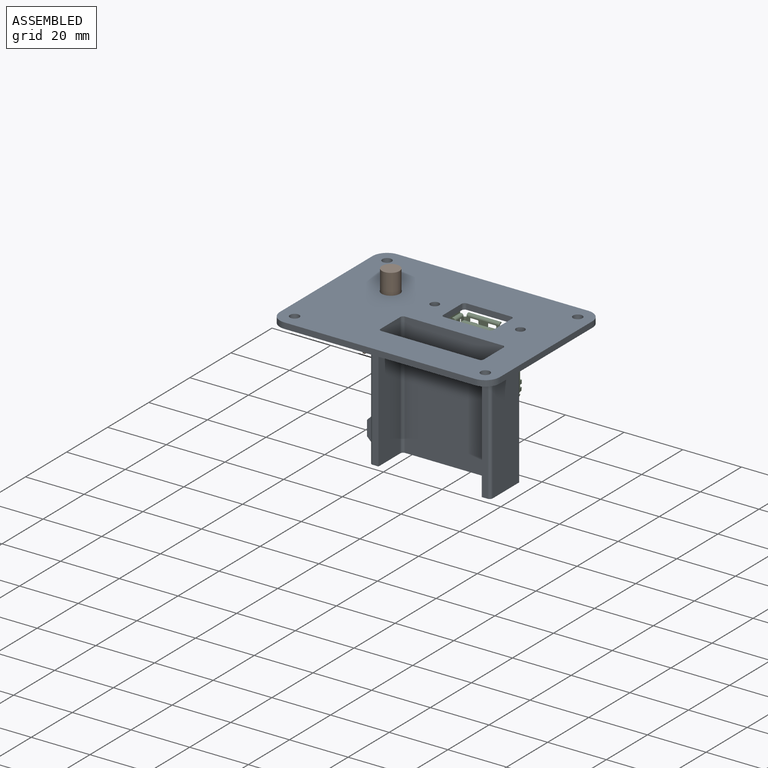
[diagram: assembled view]
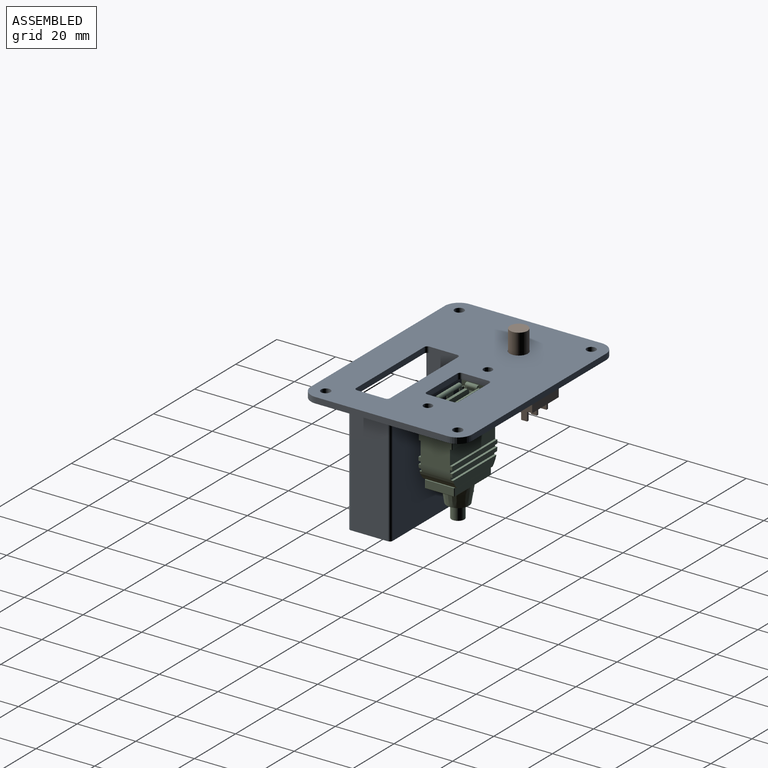
[diagram: assembled view, second angle]
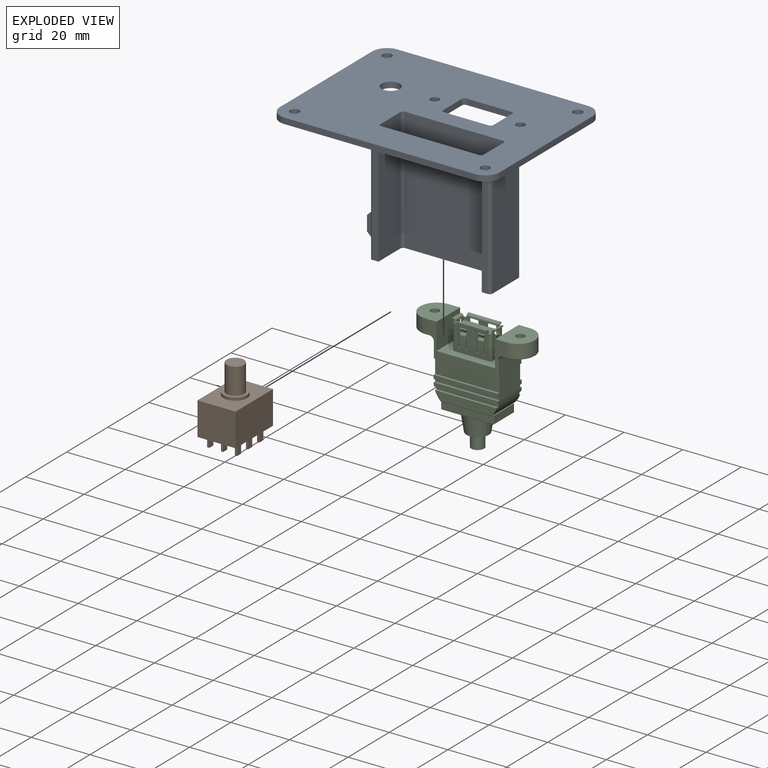
[diagram: exploded view]
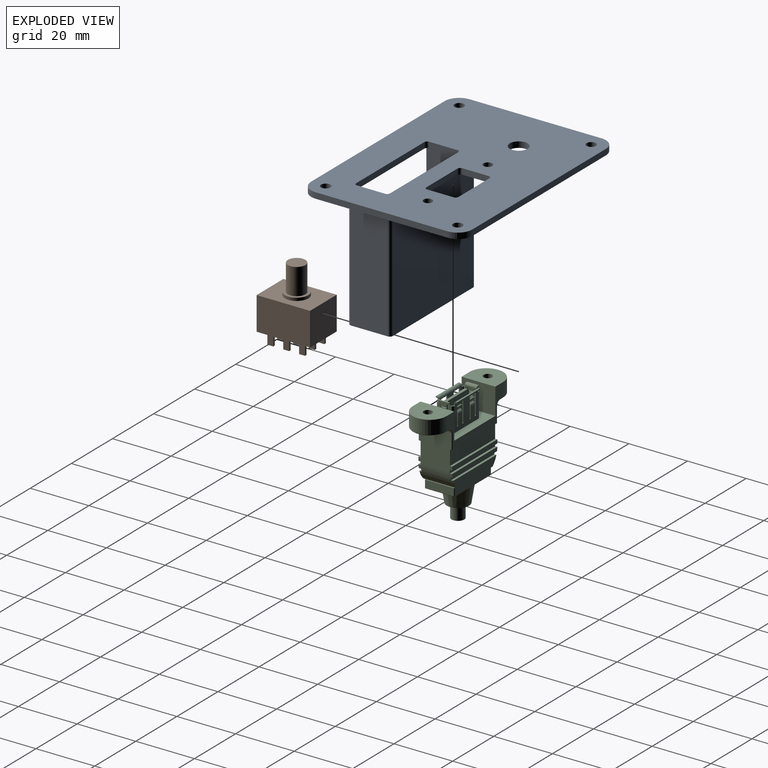
[diagram: exploded view, second angle]
ASSEMBLY  parts=3 mates=2
PART A: 51 faces, bbox 75x55x42 mm
  f0: plane 15x5mm, normal (0,1,0), area 42mm2, adj f25,f29,f30,f31,f32,f33,f34
  f1: plane 75x55mm, normal (0,0,-1), area 3239.2mm2, adj f2,f3,f4,f5,f6,f7,f9,f10
  f2: plane 65x2mm, normal (0,-1,0), area 130mm2, adj f1,f21,f35,f38
  f3: plane 45x2mm, normal (1,0,0), area 90mm2, adj f1,f21,f35,f36
  f4: plane 65x2mm, normal (0,1,0), area 130mm2, adj f1,f21,f36,f37
  f5: plane 9x2mm, normal (-1,0,0), area 18mm2, adj f1,f21,f47,f50
  f6: plane 15.13x2mm, normal (0,1,0), area 30.3mm2, adj f1,f21,f47,f48
  f7: plane 9x2mm, normal (1,0,0), area 18mm2, adj f1,f21,f48,f49
  f8: plane 42x33.2mm, normal (0,-1,0), area 1394.4mm2, adj f21,f27,f43,f46
  f9: plane 42x10.6mm, normal (-1,0,0), area 443.2mm2, adj f1,f21,f23,f27,f43,f44
  f10: plane 33.2x2mm, normal (0,1,0), area 66.4mm2, adj f1,f21,f44,f45
  f11: plane 15.13x2mm, normal (0,-1,0), area 30.3mm2, adj f1,f21,f49,f50
  f12: cylinder r=3.1mm len=6.2mm, axis (0,0,-1), area 39mm2, adj f1,f21
  f13: cylinder r=1.5mm len=3mm, axis (0,0,-1), area 18.8mm2, adj f1,f21
  f14: cylinder r=1.5mm len=3mm, axis (0,0,-1), area 18.8mm2, adj f1,f21
  f15: cylinder r=1.6mm len=3.2mm, axis (0,0,-1), area 20.1mm2, adj f1,f21
  f16: cylinder r=1.6mm len=3.2mm, axis (0,0,-1), area 20.1mm2, adj f1,f21
  f17: cylinder r=1.6mm len=3.2mm, axis (0,0,-1), area 20.1mm2, adj f1,f21
  f18: cylinder r=1.6mm len=3.2mm, axis (0,0,-1), area 20.1mm2, adj f1,f21
  f19: plane 42x10.6mm, normal (1,0,0), area 443.2mm2, adj f1,f21,f24,f27,f45,f46
  f20: plane 45x2mm, normal (-1,0,0), area 90mm2, adj f1,f21,f37,f38
  f21: plane 75x55mm, normal (0,0,1), area 3432mm2, adj f2,f3,f4,f5,f6,f7,f8,f9
  f22: plane 40x12.6mm, normal (1,0,0), area 504mm2, adj f1,f27,f39,f42
  f23: plane 40x2mm, normal (0,-1,0), area 80mm2, adj f1,f9,f27,f39
  f24: plane 40x2mm, normal (0,-1,0), area 80mm2, adj f1,f19,f27,f40
  f25: plane 40x12.6mm, normal (-1,0,0), area 471mm2, adj f0,f1,f27,f28,f30,f31,f34,f40
  f26: plane 40x39.2mm, normal (0,1,0), area 1568mm2, adj f1,f27,f41,f42
  f27: plane 41.2x14.6mm, normal (0,0,-1), area 192.8mm2, adj f8,f9,f19,f22,f23,f24,f25,f26
  f28: plane 15x5mm, normal (0,-1,0), area 42mm2, adj f25,f29,f30,f31,f32,f33,f34
  f29: plane 5x3mm, normal (-1,0,0), area 15mm2, adj f0,f28,f33,f34
  f30: plane 3x2mm, normal (0,0,1), area 6mm2, adj f0,f25,f28,f32
  f31: plane 3x2mm, normal (0,0,-1), area 6mm2, adj f0,f25,f28,f32
  f32: plane 4x3mm, normal (1,0,0), area 12mm2, adj f0,f28,f30,f31
  f33: plane 5x5mm, normal (-0.71,0,-0.71), area 21.2mm2, adj f0,f27,f28,f29
  f34: plane 5x5mm, normal (-0.71,0,0.71), area 21.2mm2, adj f0,f25,f28,f29
  f35: cylinder r=5mm len=5mm, axis (0,0,1), area 15.7mm2, adj f1,f2,f3,f21
  f36: cylinder r=5mm len=5mm, axis (0,0,-1), area 15.7mm2, adj f1,f3,f4,f21
  f37: cylinder r=5mm len=5mm, axis (0,0,1), area 15.7mm2, adj f1,f4,f20,f21
  f38: cylinder r=5mm len=5mm, axis (0,0,-1), area 15.7mm2, adj f1,f2,f20,f21
  f39: cylinder r=1mm len=40mm, axis (0,0,1), area 62.8mm2, adj f1,f22,f23,f27
  f40: cylinder r=1mm len=40mm, axis (0,0,1), area 62.8mm2, adj f1,f24,f25,f27
  f41: cylinder r=1mm len=40mm, axis (0,0,1), area 62.8mm2, adj f1,f25,f26,f27
  f42: cylinder r=1mm len=40mm, axis (0,0,1), area 62.8mm2, adj f1,f22,f26,f27
  f43: cylinder r=1mm len=42mm, axis (0,0,-1), area 66mm2, adj f8,f9,f21,f27
  f44: cylinder r=1mm len=2mm, axis (0,0,1), area 3.1mm2, adj f1,f9,f10,f21
  f45: cylinder r=1mm len=2mm, axis (0,0,-1), area 3.1mm2, adj f1,f10,f19,f21
  f46: cylinder r=1mm len=42mm, axis (0,0,1), area 66mm2, adj f8,f19,f21,f27
  f47: cylinder r=1mm len=2mm, axis (0,0,-1), area 3.1mm2, adj f1,f5,f6,f21
  f48: cylinder r=1mm len=2mm, axis (0,0,1), area 3.1mm2, adj f1,f6,f7,f21
  f49: cylinder r=1mm len=2mm, axis (0,0,-1), area 3.1mm2, adj f1,f7,f11,f21
  f50: cylinder r=1mm len=2mm, axis (0,0,1), area 3.1mm2, adj f1,f5,f11,f21
PART B: 55 faces, bbox 18.2x13x25.1 mm
  f0: plane 18.2x13mm, normal (0,0,-1), area 223.1mm2, adj f1,f2,f3,f4,f10,f11,f12,f13
  f1: plane 18.2x11.3mm, normal (0,-1,0), area 205.7mm2, adj f0,f2,f4,f5
  f2: plane 13x11.3mm, normal (1,0,0), area 146.9mm2, adj f0,f1,f3,f5
  f3: plane 18.2x11.3mm, normal (0,1,0), area 205.7mm2, adj f0,f2,f4,f5
  f4: plane 13x11.3mm, normal (-1,0,0), area 146.9mm2, adj f0,f1,f3,f5
  f5: plane 18.2x13mm, normal (0,0,1), area 186.3mm2, adj f1,f2,f3,f4,f6
  f6: cylinder r=4mm len=8mm, axis (0,0,-1), area 25.1mm2, adj f5,f7
  f7: plane 8x8mm, normal (0,0,1), area 22mm2, adj f6,f8
  f8: cylinder r=3mm len=9mm, axis (0,0,-1), area 169.6mm2, adj f7,f9
  f9: plane 6x6mm, normal (0,0,1), area 28.3mm2, adj f8
  f10: plane 3.8x0.75mm, normal (-1,0,0), area 2.9mm2, adj f0,f11,f13,f14
  f11: plane 3.8x2mm, normal (0,1,0), area 7.6mm2, adj f0,f10,f12,f14
  f12: plane 3.8x0.75mm, normal (1,0,0), area 2.9mm2, adj f0,f11,f13,f14
  f13: plane 3.8x2mm, normal (0,-1,0), area 7.6mm2, adj f0,f10,f12,f14
  f14: plane 2x0.75mm, normal (0,0,-1), area 1.5mm2, adj f10,f11,f12,f13
  f15: plane 3.8x2mm, normal (0,-1,0), area 7.6mm2, adj f0,f16,f18,f19
  f16: plane 3.8x0.75mm, normal (-1,0,0), area 2.9mm2, adj f0,f15,f17,f19
  f17: plane 3.8x2mm, normal (0,1,0), area 7.6mm2, adj f0,f16,f18,f19
  f18: plane 3.8x0.75mm, normal (1,0,0), area 2.9mm2, adj f0,f15,f17,f19
  f19: plane 2x0.75mm, normal (0,0,-1), area 1.5mm2, adj f15,f16,f17,f18
  f20: plane 3.8x2mm, normal (0,-1,0), area 7.6mm2, adj f0,f21,f23,f24
  f21: plane 3.8x0.75mm, normal (-1,0,0), area 2.9mm2, adj f0,f20,f22,f24
  f22: plane 3.8x2mm, normal (0,1,0), area 7.6mm2, adj f0,f21,f23,f24
  f23: plane 3.8x0.75mm, normal (1,0,0), area 2.9mm2, adj f0,f20,f22,f24
  f24: plane 2x0.75mm, normal (0,0,-1), area 1.5mm2, adj f20,f21,f22,f23
  f25: plane 3.8x0.75mm, normal (-1,0,0), area 2.9mm2, adj f0,f26,f28,f29
  f26: plane 3.8x2mm, normal (0,1,0), area 7.6mm2, adj f0,f25,f27,f29
  f27: plane 3.8x0.75mm, normal (1,0,0), area 2.9mm2, adj f0,f26,f28,f29
  f28: plane 3.8x2mm, normal (0,-1,0), area 7.6mm2, adj f0,f25,f27,f29
  f29: plane 2x0.75mm, normal (0,0,-1), area 1.5mm2, adj f25,f26,f27,f28
  f30: plane 3.8x2mm, normal (0,-1,0), area 7.6mm2, adj f0,f31,f33,f34
  f31: plane 3.8x0.75mm, normal (-1,0,0), area 2.9mm2, adj f0,f30,f32,f34
  f32: plane 3.8x2mm, normal (0,1,0), area 7.6mm2, adj f0,f31,f33,f34
  f33: plane 3.8x0.75mm, normal (1,0,0), area 2.9mm2, adj f0,f30,f32,f34
  f34: plane 2x0.75mm, normal (0,0,-1), area 1.5mm2, adj f30,f31,f32,f33
  f35: plane 3.8x0.75mm, normal (-1,0,0), area 2.9mm2, adj f0,f36,f38,f39
  f36: plane 3.8x2mm, normal (0,1,0), area 7.6mm2, adj f0,f35,f37,f39
  f37: plane 3.8x0.75mm, normal (1,0,0), area 2.9mm2, adj f0,f36,f38,f39
  f38: plane 3.8x2mm, normal (0,-1,0), area 7.6mm2, adj f0,f35,f37,f39
  f39: plane 2x0.75mm, normal (0,0,-1), area 1.5mm2, adj f35,f36,f37,f38
  f40: plane 3.8x0.75mm, normal (-1,0,0), area 2.9mm2, adj f0,f41,f43,f44
  f41: plane 3.8x2mm, normal (0,1,0), area 7.6mm2, adj f0,f40,f42,f44
  f42: plane 3.8x0.75mm, normal (1,0,0), area 2.9mm2, adj f0,f41,f43,f44
  f43: plane 3.8x2mm, normal (0,-1,0), area 7.6mm2, adj f0,f40,f42,f44
  f44: plane 2x0.75mm, normal (0,0,-1), area 1.5mm2, adj f40,f41,f42,f43
  f45: plane 3.8x2mm, normal (0,-1,0), area 7.6mm2, adj f0,f46,f48,f49
  f46: plane 3.8x0.75mm, normal (-1,0,0), area 2.9mm2, adj f0,f45,f47,f49
  f47: plane 3.8x2mm, normal (0,1,0), area 7.6mm2, adj f0,f46,f48,f49
  f48: plane 3.8x0.75mm, normal (1,0,0), area 2.9mm2, adj f0,f45,f47,f49
  f49: plane 2x0.75mm, normal (0,0,-1), area 1.5mm2, adj f45,f46,f47,f48
  f50: plane 3.8x0.75mm, normal (-1,0,0), area 2.9mm2, adj f0,f51,f53,f54
  f51: plane 3.8x2mm, normal (0,1,0), area 7.6mm2, adj f0,f50,f52,f54
  f52: plane 3.8x0.75mm, normal (1,0,0), area 2.9mm2, adj f0,f51,f53,f54
  f53: plane 3.8x2mm, normal (0,-1,0), area 7.6mm2, adj f0,f50,f52,f54
  f54: plane 2x0.75mm, normal (0,0,-1), area 1.5mm2, adj f50,f51,f52,f53
PART C: 258 faces, bbox 40.1x38.6x12.5 mm
  f0: cylinder r=2.16mm len=4.7mm, axis (0,-1,0), area 63.8mm2, adj f14,f257
  f1: plane 12.45x5.08mm, normal (0,-1,0), area 43.7mm2, adj f107,f108,f109,f110,f111,f112,f113,f114
  f2: plane 1.02x0.89mm, normal (0,-1,0), area 0.5mm2, adj f102,f103,f104,f110,f111,f112,f118,f121
  f3: plane 1.02x0.89mm, normal (0,-1,0), area 0.5mm2, adj f104,f105,f106,f112,f113,f114,f120,f122
  f4: plane 1.02x0.89mm, normal (0,-1,0), area 0.5mm2, adj f99,f100,f106,f107,f108,f114,f116,f119
  f5: plane 1.02x0.89mm, normal (0,-1,0), area 0.5mm2, adj f100,f101,f102,f108,f109,f110,f115,f117
  f6: plane 20x11.51mm, normal (0,-1,0), area 153.5mm2, adj f8,f24,f25,f28,f99,f100,f101,f102
  f7: plane 9.65x8.7mm, normal (0,1,0), area 47.4mm2, adj f46,f87,f91,f92
  f8: plane 27.62x11.53mm, normal (0,0,1), area 97.8mm2, adj f6,f23,f24,f25,f26,f35,f37,f62
  f9: plane 22x1.27mm, normal (0,0,1), area 27.9mm2, adj f16,f18,f59,f63
  f10: plane 21.98x1.27mm, normal (0,0,1), area 27.7mm2, adj f21,f22,f57,f60
  f11: plane 22x1.27mm, normal (0,0,-1), area 27.9mm2, adj f16,f18,f49,f54
  f12: plane 21.07x2.79mm, normal (0,0,-1), area 54.8mm2, adj f21,f22,f50,f98
  f13: plane 21.98x1.27mm, normal (0,0,-1), area 27.7mm2, adj f21,f22,f48,f51
  f14: plane 7.62x7.62mm, normal (0,1,0), area 31mm2, adj f0,f46
  f15: plane 9.65x8.7mm, normal (0,1,0), area 47.4mm2, adj f46,f86,f87,f91
  f16: plane 12.09x11.51mm, normal (1,0,0), area 125.3mm2, adj f9,f11,f21,f41,f42,f43,f47,f49
  f17: plane 11x6.72mm, normal (0,1,0), area 53.7mm2, adj f41,f42,f43,f45,f67,f68,f78,f79
  f18: plane 12.09x11.51mm, normal (-1,0,0), area 125.3mm2, adj f9,f11,f22,f38,f39,f40,f47,f49
  f19: plane 16.93x0.42mm, normal (0,1,0), area 7.1mm2, adj f33,f95,f96,f97
  f20: plane 17.14x0.42mm, normal (0,1,0), area 7.2mm2, adj f21,f22,f31,f98
  f21: cylinder r=7.94mm len=11.51mm, axis (0,0,-1), area 71.1mm2, adj f10,f12,f13,f16,f20,f27,f29,f33
  f22: cylinder r=7.94mm len=11.51mm, axis (0,0,-1), area 71.1mm2, adj f10,f12,f13,f18,f20,f27,f33,f34
  f23: plane 11.51x9.63mm, normal (0,-1,0), area 90mm2, adj f8,f24,f28,f37,f44
  f24: plane 11.51x8.99mm, normal (1,0,0), area 103.5mm2, adj f6,f8,f23,f28
  f25: plane 11.51x8.99mm, normal (-1,0,0), area 103.5mm2, adj f6,f8,f26,f28
  f26: plane 11.51x9.5mm, normal (0,-1,0), area 88.5mm2, adj f8,f25,f28,f35,f45
  f27: plane 21.07x2.79mm, normal (0,0,1), area 54.8mm2, adj f21,f22,f58,f96
  f28: plane 27.62x11.53mm, normal (0,0,-1), area 97.8mm2, adj f6,f23,f24,f25,f26,f35,f37,f55
  f29: plane 10.16x0.38mm, normal (0,-1,0), area 3.9mm2, adj f21,f30,f31,f33,f88,f94
  f30: plane 9.65x2.51mm, normal (1,0,0), area 24.3mm2, adj f29,f88,f92,f94
  f31: plane 17.4x2.51mm, normal (0,0,-1), area 43.8mm2, adj f20,f29,f34,f83,f87,f88
  f32: plane 9.65x2.51mm, normal (-1,0,0), area 24.3mm2, adj f34,f83,f85,f86
  f33: plane 17.4x2.59mm, normal (0,0,1), area 43.8mm2, adj f19,f21,f22,f29,f34,f85,f91,f94
  f34: plane 10.16x0.38mm, normal (0,-1,0), area 3.9mm2, adj f22,f31,f32,f33,f83,f85
  f35: cylinder r=5.75mm len=11.51mm, axis (0,-1,0), area 84mm2, adj f8,f26,f28,f79
  f36: plane 11x6.85mm, normal (0,1,0), area 55.2mm2, adj f38,f39,f40,f44,f65,f66,f71,f72
  f37: cylinder r=5.75mm len=11.51mm, axis (0,-1,0), area 84mm2, adj f8,f23,f28,f72
  f38: plane 2.54x2.54mm, normal (-0.82,0.57,0), area 7.9mm2, adj f18,f36,f39,f40
  f39: plane 2.54x1.78mm, normal (0,0,1), area 1.8mm2, adj f18,f36,f38,f66
  f40: plane 2.54x1.78mm, normal (0,0,-1), area 1.8mm2, adj f18,f36,f38,f65
  f41: plane 2.54x2.54mm, normal (0.82,0.57,0), area 7.9mm2, adj f16,f17,f42,f43
  f42: plane 2.54x1.78mm, normal (0,0,1), area 1.8mm2, adj f16,f17,f41,f68
  f43: plane 2.54x1.78mm, normal (0,0,-1), area 1.8mm2, adj f16,f17,f41,f67
  f44: cylinder r=1.45mm len=4.9mm, axis (0,-1,0), area 44.6mm2, adj f23,f36
  f45: cylinder r=1.45mm len=4.9mm, axis (0,-1,0), area 44.6mm2, adj f17,f26
  f46: cone r=4.83mm half-angle=9.1deg, axis (0,-1,0), area 174.5mm2, adj f7,f14,f15
  f47: plane 22x1.02mm, normal (0,0,-1), area 22.3mm2, adj f16,f18,f21,f22,f48,f49
  f48: plane 21.98x0.76mm, normal (0,-1,0), area 16.7mm2, adj f13,f21,f22,f47
  f49: plane 22x0.76mm, normal (0,1,0), area 16.8mm2, adj f11,f16,f18,f47
  f50: plane 21.07x0.76mm, normal (0,-1,0), area 16.1mm2, adj f12,f21,f22,f52
  f51: plane 21.65x0.76mm, normal (0,1,0), area 16.5mm2, adj f13,f21,f22,f52
  f52: plane 21.65x1.02mm, normal (0,0,-1), area 21.7mm2, adj f21,f22,f50,f51
  f53: plane 22x5.08mm, normal (0,0,-1), area 111.7mm2, adj f16,f18,f54,f55
  f54: plane 22x0.76mm, normal (0,-1,0), area 16.8mm2, adj f11,f16,f18,f53
  f55: plane 22x0.76mm, normal (0,1,0), area 16.7mm2, adj f16,f18,f28,f53,f69,f82
  f56: plane 21.65x1.02mm, normal (0,0,1), area 21.7mm2, adj f21,f22,f57,f58
  f57: plane 21.65x0.76mm, normal (0,1,0), area 16.5mm2, adj f10,f21,f22,f56
  f58: plane 21.07x0.76mm, normal (0,-1,0), area 16.1mm2, adj f21,f22,f27,f56
  f59: plane 22x0.76mm, normal (0,1,0), area 16.8mm2, adj f9,f16,f18,f61
  f60: plane 21.98x0.76mm, normal (0,-1,0), area 16.7mm2, adj f10,f21,f22,f61
  f61: plane 22x1.02mm, normal (0,0,1), area 22.3mm2, adj f16,f18,f21,f22,f59,f60
  f62: plane 22x0.76mm, normal (0,1,0), area 16.7mm2, adj f8,f16,f18,f64,f75,f76
  f63: plane 22x0.76mm, normal (0,-1,0), area 16.8mm2, adj f9,f16,f18,f64
  f64: plane 22x5.08mm, normal (0,0,1), area 111.7mm2, adj f16,f18,f62,f63
  f65: cylinder r=1.52mm len=4.23mm, axis (0,0,1), area 10.1mm2, adj f18,f36,f40,f70
  f66: cylinder r=1.52mm len=4.23mm, axis (0,0,1), area 10.1mm2, adj f18,f36,f39,f74
  f67: cylinder r=1.52mm len=4.23mm, axis (0,0,-1), area 10.1mm2, adj f16,f17,f43,f81
  f68: cylinder r=1.52mm len=4.23mm, axis (0,0,-1), area 10.1mm2, adj f16,f17,f42,f77
  f69: cylinder r=0.25mm len=5.11mm, axis (0,-1,0), area 2mm2, adj f18,f28,f55,f70
  f70: torus R=1.78mm, axis (0,0,1), area 1mm2, adj f28,f65,f69,f71
  f71: cylinder r=0.25mm len=1.35mm, axis (1,0,0), area 0.5mm2, adj f28,f36,f70,f72
  f72: torus R=5.5mm, axis (0,-1,0), area 7.1mm2, adj f36,f37,f71,f73
  f73: cylinder r=0.25mm len=1.35mm, axis (1,0,0), area 0.5mm2, adj f8,f36,f72,f74
  f74: torus R=1.78mm, axis (0,0,1), area 1mm2, adj f8,f66,f73,f75
  f75: cylinder r=0.25mm len=5.11mm, axis (0,1,0), area 2mm2, adj f8,f18,f62,f74
  f76: cylinder r=0.25mm len=5.11mm, axis (0,-1,0), area 2mm2, adj f8,f16,f62,f77
  f77: torus R=1.78mm, axis (0,0,1), area 1mm2, adj f8,f68,f76,f78
  f78: cylinder r=0.25mm len=1.22mm, axis (-1,0,0), area 0.5mm2, adj f8,f17,f77,f79
  f79: torus R=5.5mm, axis (0,1,0), area 7.1mm2, adj f17,f35,f78,f80
  f80: cylinder r=0.25mm len=1.22mm, axis (-1,0,0), area 0.5mm2, adj f17,f28,f79,f81
  f81: torus R=1.78mm, axis (0,0,1), area 1mm2, adj f28,f67,f80,f82
  f82: cylinder r=0.25mm len=5.11mm, axis (0,1,0), area 2mm2, adj f16,f28,f55,f81
  f83: cylinder r=0.25mm len=2.51mm, axis (0,-1,0), area 1mm2, adj f31,f32,f34,f84
  f84: sphere r=0.25mm, area 0.1mm2, adj f83,f86,f87
  f85: cylinder r=0.25mm len=2.51mm, axis (0,-1,0), area 1mm2, adj f32,f33,f34,f89
  f86: cylinder r=0.25mm len=9.65mm, axis (0,0,-1), area 3.9mm2, adj f15,f32,f84,f89
  f87: cylinder r=0.25mm len=17.4mm, axis (1,0,0), area 6.9mm2, adj f7,f15,f31,f84,f90
  f88: cylinder r=0.25mm len=2.51mm, axis (0,-1,0), area 1mm2, adj f29,f30,f31,f90
  f89: sphere r=0.25mm, area 0.1mm2, adj f85,f86,f91
  f90: sphere r=0.25mm, area 0.1mm2, adj f87,f88,f92
  f91: cylinder r=0.25mm len=17.4mm, axis (-1,0,0), area 6.9mm2, adj f7,f15,f33,f89,f93
  f92: cylinder r=0.25mm len=9.65mm, axis (0,0,1), area 3.9mm2, adj f7,f30,f90,f93
  f93: sphere r=0.25mm, area 0.1mm2, adj f91,f92,f94
  f94: cylinder r=0.25mm len=2.51mm, axis (0,-1,0), area 1mm2, adj f29,f30,f33,f93
  f95: cylinder r=0.25mm len=0.6mm, axis (0,0,-1), area 0.1mm2, adj f19,f21,f33,f96
  f96: cylinder r=0.25mm len=17.64mm, axis (1,0,0), area 6.9mm2, adj f19,f21,f22,f27,f95,f97
  f97: cylinder r=0.25mm len=0.6mm, axis (0,0,-1), area 0.1mm2, adj f19,f22,f33,f96
  f98: cylinder r=0.25mm len=17.64mm, axis (-1,0,0), area 6.9mm2, adj f12,f20,f21,f22
  f99: cylinder r=0.76mm len=8.38mm, axis (0,1,0), area 10mm2, adj f4,f6,f100,f106
  f100: plane 8.76x4.32mm, normal (-1,0,0), area 21.3mm2, adj f4,f5,f6,f99,f101,f115,f116,f137
  f101: cylinder r=0.76mm len=8.38mm, axis (0,1,0), area 10mm2, adj f5,f6,f100,f102
  f102: plane 11.68x8.76mm, normal (0,0,-1), area 74.8mm2, adj f2,f5,f6,f101,f103,f117,f118,f128
  f103: cylinder r=0.76mm len=8.38mm, axis (0,1,0), area 10mm2, adj f2,f6,f102,f104
  f104: plane 8.76x4.32mm, normal (1,0,0), area 21.3mm2, adj f2,f3,f6,f103,f105,f121,f122,f138
  f105: cylinder r=0.76mm len=8.38mm, axis (0,1,0), area 10mm2, adj f3,f6,f104,f106
  f106: plane 11.68x8.76mm, normal (0,0,1), area 74.8mm2, adj f3,f4,f6,f99,f105,f119,f120,f127
  f107: cylinder r=0.38mm len=8.38mm, axis (0,1,0), area 5mm2, adj f1,f4,f108,f114
  f108: plane 8.76x4.32mm, normal (1,0,0), area 21.3mm2, adj f1,f4,f5,f107,f109,f115,f116,f133
  f109: cylinder r=0.38mm len=8.38mm, axis (0,1,0), area 5mm2, adj f1,f5,f108,f110
  f110: plane 11.68x8.76mm, normal (0,0,1), area 74.8mm2, adj f1,f2,f5,f109,f111,f117,f118,f132
  f111: cylinder r=0.38mm len=8.38mm, axis (0,1,0), area 5mm2, adj f1,f2,f110,f112
  f112: plane 8.76x4.32mm, normal (-1,0,0), area 21.3mm2, adj f1,f2,f3,f111,f113,f121,f122,f142
  f113: cylinder r=0.38mm len=8.38mm, axis (0,1,0), area 5mm2, adj f1,f3,f112,f114
  f114: plane 11.68x8.76mm, normal (0,0,-1), area 74.8mm2, adj f1,f3,f4,f107,f113,f119,f120,f123
  f115: plane 1.14x1.08mm, normal (0,0,-1), area 0.6mm2, adj f5,f100,f108,f133,f134,f135,f136,f137
  f116: plane 1.14x1.08mm, normal (0,0,1), area 0.6mm2, adj f4,f100,f108,f133,f134,f135,f136,f137
  f117: plane 1.14x1.08mm, normal (-1,0,0), area 0.6mm2, adj f5,f102,f110,f128,f129,f130,f131,f132
  f118: plane 1.14x1.08mm, normal (1,0,0), area 0.6mm2, adj f2,f102,f110,f128,f129,f130,f131,f132
  f119: plane 1.14x1.08mm, normal (-1,0,0), area 0.6mm2, adj f4,f106,f114,f123,f124,f125,f126,f127
  f120: plane 1.14x1.08mm, normal (1,0,0), area 0.6mm2, adj f3,f106,f114,f123,f124,f125,f126,f127
  f121: plane 1.14x1.08mm, normal (0,0,-1), area 0.6mm2, adj f2,f104,f112,f138,f139,f140,f141,f142
  f122: plane 1.14x1.08mm, normal (0,0,1), area 0.6mm2, adj f3,f104,f112,f138,f139,f140,f141,f142
  f123: cylinder r=0.76mm len=11.18mm, axis (1,0,0), area 13.4mm2, adj f114,f119,f120,f124
  f124: plane 11.18x0.32mm, normal (0,-1,0), area 3.5mm2, adj f119,f120,f123,f125
  f125: plane 11.18x0.38mm, normal (0,0,1), area 4.3mm2, adj f119,f120,f124,f126
  f126: plane 11.18x0.32mm, normal (0,1,0), area 3.5mm2, adj f119,f120,f125,f127
  f127: cylinder r=0.38mm len=11.18mm, axis (1,0,0), area 6.7mm2, adj f106,f119,f120,f126
  f128: cylinder r=0.38mm len=11.18mm, axis (1,0,0), area 6.7mm2, adj f102,f117,f118,f129
  f129: plane 11.18x0.32mm, normal (0,1,0), area 3.5mm2, adj f117,f118,f128,f130
  f130: plane 11.18x0.38mm, normal (0,0,-1), area 4.3mm2, adj f117,f118,f129,f131
  f131: plane 11.18x0.32mm, normal (0,-1,0), area 3.5mm2, adj f117,f118,f130,f132
  f132: cylinder r=0.76mm len=11.18mm, axis (1,0,0), area 13.4mm2, adj f110,f117,f118,f131
  f133: cylinder r=0.76mm len=4.06mm, axis (0,0,1), area 4.9mm2, adj f108,f115,f116,f134
  f134: plane 4.06x0.32mm, normal (0,-1,0), area 1.3mm2, adj f115,f116,f133,f135
  f135: plane 4.06x0.38mm, normal (-1,0,0), area 1.5mm2, adj f115,f116,f134,f136
  f136: plane 4.06x0.32mm, normal (0,1,0), area 1.3mm2, adj f115,f116,f135,f137
  f137: cylinder r=0.38mm len=4.06mm, axis (0,0,1), area 2.4mm2, adj f100,f115,f116,f136
  f138: cylinder r=0.38mm len=4.06mm, axis (0,0,1), area 2.4mm2, adj f104,f121,f122,f139
  f139: plane 4.06x0.32mm, normal (0,1,0), area 1.3mm2, adj f121,f122,f138,f140
  f140: plane 4.06x0.38mm, normal (1,0,0), area 1.5mm2, adj f121,f122,f139,f141
  f141: plane 4.06x0.32mm, normal (0,-1,0), area 1.3mm2, adj f121,f122,f140,f142
  f142: cylinder r=0.76mm len=4.06mm, axis (0,0,1), area 4.9mm2, adj f112,f121,f122,f141
  f143: plane 6.6x0.38mm, normal (-1,0,0), area 2.5mm2, adj f106,f114,f144,f151
  f144: cylinder r=0.25mm len=0.51mm, axis (0,0,1), area 0.3mm2, adj f106,f114,f143,f145
  f145: plane 5.84x1.02mm, normal (1,0,0), area 2.3mm2, adj f106,f114,f144,f197,f198,f199,f200,f201
  f146: plane 5.84x1.02mm, normal (-1,0,0), area 2.3mm2, adj f106,f114,f147,f197,f198,f199,f200,f201
  f147: cylinder r=0.25mm len=0.51mm, axis (0,0,1), area 0.3mm2, adj f106,f114,f146,f148
  f148: plane 6.6x0.38mm, normal (1,0,0), area 2.5mm2, adj f106,f114,f147,f149
  f149: cylinder r=0.25mm len=0.38mm, axis (0,0,1), area 0.2mm2, adj f106,f114,f148,f150
  f150: plane 2.54x0.38mm, normal (0,1,0), area 1mm2, adj f106,f114,f149,f151
  f151: cylinder r=0.25mm len=0.38mm, axis (0,0,1), area 0.2mm2, adj f106,f114,f143,f150
  f152: cylinder r=0.25mm len=0.38mm, axis (0,0,1), area 0.2mm2, adj f102,f110,f153,f160
  f153: plane 2.54x0.38mm, normal (0,1,0), area 1mm2, adj f102,f110,f152,f154
  f154: cylinder r=0.25mm len=0.38mm, axis (0,0,1), area 0.2mm2, adj f102,f110,f153,f155
  f155: plane 6.6x0.38mm, normal (1,0,0), area 2.5mm2, adj f102,f110,f154,f156
  f156: cylinder r=0.25mm len=0.51mm, axis (0,0,1), area 0.3mm2, adj f102,f110,f155,f157
  f157: plane 5.84x1.02mm, normal (-1,0,0), area 2.3mm2, adj f102,f110,f156,f206,f207,f208,f209,f210
  f158: plane 5.84x1.02mm, normal (1,0,0), area 2.3mm2, adj f102,f110,f159,f206,f207,f208,f209,f210
  f159: cylinder r=0.25mm len=0.51mm, axis (0,0,1), area 0.3mm2, adj f102,f110,f158,f160
  f160: plane 6.6x0.38mm, normal (-1,0,0), area 2.5mm2, adj f102,f110,f152,f159
  f161: plane 5.84x1.02mm, normal (1,0,0), area 2.3mm2, adj f106,f114,f169,f215,f216,f217,f218,f219
  f162: plane 5.84x1.02mm, normal (-1,0,0), area 2.3mm2, adj f106,f114,f163,f215,f216,f217,f218,f219
  f163: cylinder r=0.25mm len=0.51mm, axis (0,0,1), area 0.3mm2, adj f106,f114,f162,f164
  f164: plane 6.6x0.38mm, normal (1,0,0), area 2.5mm2, adj f106,f114,f163,f165
  f165: cylinder r=0.25mm len=0.38mm, axis (0,0,1), area 0.2mm2, adj f106,f114,f164,f166
  f166: plane 2.54x0.38mm, normal (0,1,0), area 1mm2, adj f106,f114,f165,f167
  f167: cylinder r=0.25mm len=0.38mm, axis (0,0,1), area 0.2mm2, adj f106,f114,f166,f168
  f168: plane 6.6x0.38mm, normal (-1,0,0), area 2.5mm2, adj f106,f114,f167,f169
  f169: cylinder r=0.25mm len=0.51mm, axis (0,0,1), area 0.3mm2, adj f106,f114,f161,f168
  f170: cylinder r=0.25mm len=0.51mm, axis (0,0,1), area 0.3mm2, adj f102,f110,f171,f178
  f171: plane 6.6x0.38mm, normal (-1,0,0), area 2.5mm2, adj f102,f110,f170,f172
  f172: cylinder r=0.25mm len=0.38mm, axis (0,0,1), area 0.2mm2, adj f102,f110,f171,f173
  f173: plane 2.54x0.38mm, normal (0,1,0), area 1mm2, adj f102,f110,f172,f174
  f174: cylinder r=0.25mm len=0.38mm, axis (0,0,1), area 0.2mm2, adj f102,f110,f173,f175
  f175: plane 6.6x0.38mm, normal (1,0,0), area 2.5mm2, adj f102,f110,f174,f176
  f176: cylinder r=0.25mm len=0.51mm, axis (0,0,1), area 0.3mm2, adj f102,f110,f175,f177
  f177: plane 5.84x1.02mm, normal (-1,0,0), area 2.3mm2, adj f102,f110,f176,f224,f225,f226,f227,f228
  f178: plane 5.84x1.02mm, normal (1,0,0), area 2.3mm2, adj f102,f110,f170,f224,f225,f226,f227,f228
  f179: plane 2.03x0.38mm, normal (0,1,0), area 0.8mm2, adj f104,f112,f180,f187
  f180: cylinder r=0.25mm len=0.38mm, axis (1,0,0), area 0.2mm2, adj f104,f112,f179,f181
  f181: plane 6.6x0.38mm, normal (0,0,1), area 2.5mm2, adj f104,f112,f180,f182
  f182: cylinder r=0.25mm len=0.51mm, axis (1,0,0), area 0.3mm2, adj f104,f112,f181,f183
  f183: plane 5.84x0.96mm, normal (0,0,-1), area 2.2mm2, adj f104,f112,f182,f233,f234,f235,f236,f237
  f184: plane 5.84x0.96mm, normal (0,0,1), area 2.2mm2, adj f104,f112,f185,f233,f234,f235,f236,f237
  f185: cylinder r=0.25mm len=0.51mm, axis (1,0,0), area 0.3mm2, adj f104,f112,f184,f186
  f186: plane 6.6x0.38mm, normal (0,0,-1), area 2.5mm2, adj f104,f112,f185,f187
  f187: cylinder r=0.25mm len=0.38mm, axis (1,0,0), area 0.2mm2, adj f104,f112,f179,f186
  f188: cylinder r=0.25mm len=0.38mm, axis (1,0,0), area 0.2mm2, adj f100,f108,f189,f196
  f189: plane 6.6x0.38mm, normal (0,0,-1), area 2.5mm2, adj f100,f108,f188,f190
  f190: cylinder r=0.25mm len=0.51mm, axis (1,0,0), area 0.3mm2, adj f100,f108,f189,f191
  f191: plane 5.84x0.96mm, normal (0,0,1), area 2.2mm2, adj f100,f108,f190,f241,f242,f243,f244,f245
  f192: plane 5.84x0.96mm, normal (0,0,-1), area 2.2mm2, adj f100,f108,f193,f241,f242,f243,f244,f245
  f193: cylinder r=0.25mm len=0.51mm, axis (1,0,0), area 0.3mm2, adj f100,f108,f192,f194
  f194: plane 6.6x0.38mm, normal (0,0,1), area 2.5mm2, adj f100,f108,f193,f195
  f195: cylinder r=0.25mm len=0.38mm, axis (1,0,0), area 0.2mm2, adj f100,f108,f194,f196
  f196: plane 2.03x0.38mm, normal (0,1,0), area 0.8mm2, adj f100,f108,f188,f195
  f197: cylinder r=0.38mm len=2.03mm, axis (1,0,0), area 0.8mm2, adj f114,f145,f146,f198
  f198: plane 2.03x0.06mm, normal (0,0.87,-0.5), area 0.1mm2, adj f145,f146,f197,f199
  f199: cylinder r=0.76mm len=2.03mm, axis (1,0,0), area 2.4mm2, adj f145,f146,f198,f200
  f200: plane 2.03x0.81mm, normal (0,-0.5,-0.87), area 1.9mm2, adj f145,f146,f199,f201
  f201: plane 2.03x0.33mm, normal (0,-0.87,0.5), area 0.8mm2, adj f145,f146,f200,f202
  f202: plane 2.03x0.81mm, normal (0,0.5,0.87), area 1.9mm2, adj f145,f146,f201,f203
  f203: cylinder r=0.38mm len=2.03mm, axis (1,0,0), area 1.2mm2, adj f145,f146,f202,f204
  f204: plane 2.03x0.06mm, normal (0,-0.87,0.5), area 0.1mm2, adj f145,f146,f203,f205
  f205: cylinder r=0.76mm len=2.03mm, axis (1,0,0), area 1.6mm2, adj f106,f145,f146,f204
  f206: cylinder r=0.76mm len=2.03mm, axis (1,0,0), area 1.6mm2, adj f102,f157,f158,f207
  f207: plane 2.03x0.06mm, normal (0,-0.87,-0.5), area 0.1mm2, adj f157,f158,f206,f208
  f208: cylinder r=0.38mm len=2.03mm, axis (1,0,0), area 1.2mm2, adj f157,f158,f207,f209
  f209: plane 2.03x0.81mm, normal (0,0.5,-0.87), area 1.9mm2, adj f157,f158,f208,f210
  f210: plane 2.03x0.33mm, normal (0,-0.87,-0.5), area 0.8mm2, adj f157,f158,f209,f211
  f211: plane 2.03x0.81mm, normal (0,-0.5,0.87), area 1.9mm2, adj f157,f158,f210,f212
  f212: cylinder r=0.76mm len=2.03mm, axis (1,0,0), area 2.4mm2, adj f157,f158,f211,f213
  f213: plane 2.03x0.06mm, normal (0,0.87,0.5), area 0.1mm2, adj f157,f158,f212,f214
  f214: cylinder r=0.38mm len=2.03mm, axis (1,0,0), area 0.8mm2, adj f110,f157,f158,f213
  f215: cylinder r=0.76mm len=2.03mm, axis (1,0,0), area 1.6mm2, adj f106,f161,f162,f223
  f216: cylinder r=0.38mm len=2.03mm, axis (1,0,0), area 0.8mm2, adj f114,f161,f162,f217
  f217: plane 2.03x0.06mm, normal (0,0.87,-0.5), area 0.1mm2, adj f161,f162,f216,f218
  f218: cylinder r=0.76mm len=2.03mm, axis (1,0,0), area 2.4mm2, adj f161,f162,f217,f219
  f219: plane 2.03x0.81mm, normal (0,-0.5,-0.87), area 1.9mm2, adj f161,f162,f218,f220
  f220: plane 2.03x0.33mm, normal (0,-0.87,0.5), area 0.8mm2, adj f161,f162,f219,f221
  f221: plane 2.03x0.81mm, normal (0,0.5,0.87), area 1.9mm2, adj f161,f162,f220,f222
  f222: cylinder r=0.38mm len=2.03mm, axis (1,0,0), area 1.2mm2, adj f161,f162,f221,f223
  f223: plane 2.03x0.06mm, normal (0,-0.87,0.5), area 0.1mm2, adj f161,f162,f215,f222
  f224: cylinder r=0.76mm len=2.03mm, axis (1,0,0), area 2.4mm2, adj f177,f178,f225,f232
  f225: plane 2.03x0.06mm, normal (0,0.87,0.5), area 0.1mm2, adj f177,f178,f224,f226
  f226: cylinder r=0.38mm len=2.03mm, axis (1,0,0), area 0.8mm2, adj f110,f177,f178,f225
  f227: cylinder r=0.76mm len=2.03mm, axis (1,0,0), area 1.6mm2, adj f102,f177,f178,f228
  f228: plane 2.03x0.06mm, normal (0,-0.87,-0.5), area 0.1mm2, adj f177,f178,f227,f229
  f229: cylinder r=0.38mm len=2.03mm, axis (1,0,0), area 1.2mm2, adj f177,f178,f228,f230
  f230: plane 2.03x0.81mm, normal (0,0.5,-0.87), area 1.9mm2, adj f177,f178,f229,f231
  f231: plane 2.03x0.33mm, normal (0,-0.87,-0.5), area 0.8mm2, adj f177,f178,f230,f232
  f232: plane 2.03x0.81mm, normal (0,-0.5,0.87), area 1.9mm2, adj f177,f178,f224,f231
  f233: cylinder r=0.76mm len=1.52mm, axis (0,0,1), area 0.1mm2, adj f104,f183,f184,f234
  f234: plane 3.24x1.52mm, normal (1,-0.09,0), area 4.9mm2, adj f183,f184,f233,f235
  f235: cylinder r=0.38mm len=1.52mm, axis (0,0,1), area 0.3mm2, adj f183,f184,f234,f236
  f236: plane 1.52x1.52mm, normal (0.94,0.34,0), area 2.5mm2, adj f183,f184,f235,f237
  f237: plane 1.52x0.36mm, normal (0.34,-0.94,0), area 0.6mm2, adj f183,f184,f236,f238
  f238: plane 1.52x1.52mm, normal (-0.94,-0.34,0), area 2.5mm2, adj f183,f184,f237,f239
  f239: cylinder r=0.76mm len=1.52mm, axis (0,0,1), area 0.5mm2, adj f183,f184,f238,f240
  f240: plane 3.25x1.52mm, normal (-1,0.09,0), area 5mm2, adj f112,f183,f184,f239
  f241: plane 3.25x1.52mm, normal (1,0.09,0), area 5mm2, adj f108,f191,f192,f242
  f242: cylinder r=0.76mm len=1.52mm, axis (0,0,1), area 0.5mm2, adj f191,f192,f241,f243
  f243: plane 1.52x1.52mm, normal (0.94,-0.34,0), area 2.5mm2, adj f191,f192,f242,f244
  f244: plane 1.52x0.36mm, normal (-0.34,-0.94,0), area 0.6mm2, adj f191,f192,f243,f245
  f245: plane 1.52x1.52mm, normal (-0.94,0.34,0), area 2.5mm2, adj f191,f192,f244,f246
  f246: cylinder r=0.38mm len=1.52mm, axis (0,0,1), area 0.3mm2, adj f191,f192,f245,f247
  f247: plane 3.24x1.52mm, normal (-1,-0.09,0), area 4.9mm2, adj f191,f192,f246,f248
  f248: cylinder r=0.76mm len=1.52mm, axis (0,0,1), area 0.1mm2, adj f100,f191,f192,f247
  f249: plane 7.98x1.78mm, normal (-1,0,0), area 14.2mm2, adj f1,f250,f252,f254
  f250: plane 10.92x7.98mm, normal (0,0,-1), area 87.1mm2, adj f1,f249,f251,f255
  f251: plane 7.98x1.78mm, normal (1,0,0), area 14.2mm2, adj f1,f250,f252,f256
  f252: plane 10.92x8.74mm, normal (0,0,1), area 94.9mm2, adj f1,f249,f251,f253,f254,f256
  f253: plane 9.4x1.02mm, normal (0,-1,0), area 9.5mm2, adj f252,f254,f255,f256
  f254: plane 1.78x0.76mm, normal (-0.71,-0.71,0), area 1.5mm2, adj f249,f252,f253,f255
  f255: plane 10.92x0.76mm, normal (0,-0.71,-0.71), area 10.9mm2, adj f250,f253,f254,f256
  f256: plane 1.78x0.76mm, normal (0.71,-0.71,0), area 1.5mm2, adj f251,f252,f253,f255
  f257: plane 4.32x4.32mm, normal (0,1,0), area 14.6mm2, adj f0
PLACE A at identity fixed
PLACE B rot(axis=(0,0,-1),90deg) t=(-20.04,6.5,-12.3)mm
PLACE C rot(axis=(-1,0,0),90deg) t=(9.58,6.5,-8.99)mm
MATE fastened C.f45 <-> A.f14  axis (0,0,1) through (24.16,6.5,0)mm
MATE fastened B.f6 <-> A.f12  axis (0,0,1) through (-20.04,6.5,0)mm
